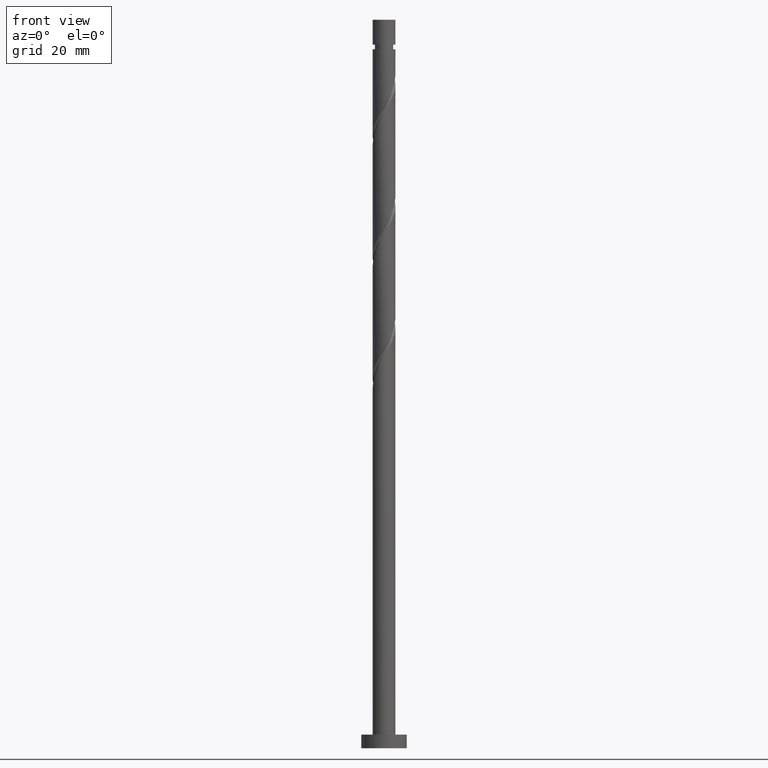
[diagram: clean part render]
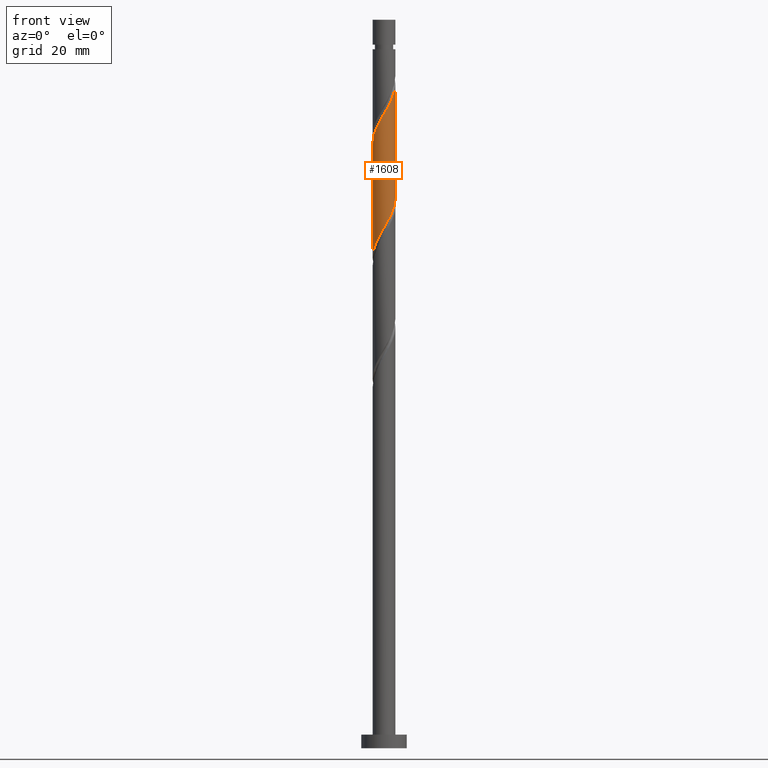
[diagram: same view with one face highlighted and labeled with its STEP entity id]
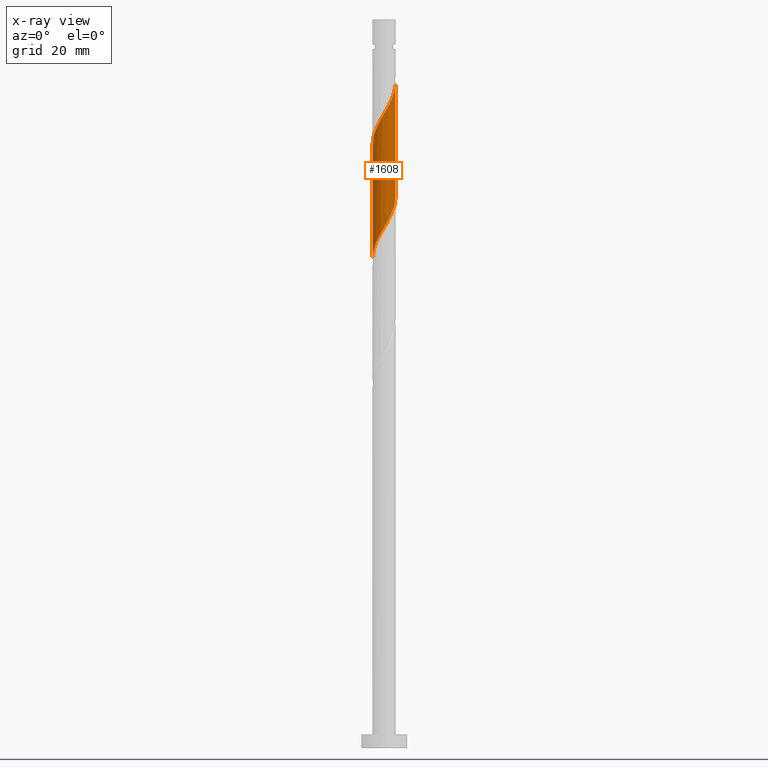
[diagram: x-ray of the same camera — body ghosted, the highlighted face saturated]
A machine part, front view. The second image highlights one B-rep face of the part: STEP entity #1608.
The next image is the same camera in x-ray: the body ghosted, the highlighted face saturated — about 0% of this face is hidden behind the body in this view.
In plain terms, the highlighted cylindrical surface (edge-blend (fillet) strip) has radius 2.5 mm, axis along (-0, -0, -1).
Its self-contained STEP definition (entity closure, byte-faithful):
#21 = DIRECTION ( 'NONE',  ( -0.000000000000000000, -0.000000000000000000, -1.000000000000000000 ) ) ;
#26 = LINE ( 'NONE', #1440, #511 ) ;
#33 = CARTESIAN_POINT ( 'NONE',  ( -0.4974937185533109263, -2.449999999999999289, 113.5153145117290734 ) ) ;
#40 =( BOUNDED_CURVE ( )  B_SPLINE_CURVE ( 2, ( #284, #1553, #911, #796, #904, #1422, #754, #232, #1047, #1563, #924, #793, #537, #661, #33, #1315, #409, #281, #1439, #1190, #822, #1199, #1463, #1207, #1340 ),
 .UNSPECIFIED., .F., .T. ) 
 B_SPLINE_CURVE_WITH_KNOTS ( ( 3, 2, 2, 2, 2, 2, 2, 2, 2, 2, 2, 2, 3 ),
 ( 0.5545252162417514397, 0.5568181818181817677, 0.5681818181818182323, 0.5795454545454545858, 0.5909090909090909394, 0.6022727272727272929, 0.6136363636363636465, 0.6250000000000000000, 0.6363636363636363535, 0.6477272727272727071, 0.6590909090909090606, 0.6704545454545454142, 0.6795252162417515507 ),
 .UNSPECIFIED. ) 
 CURVE ( )  GEOMETRIC_REPRESENTATION_ITEM ( )  RATIONAL_B_SPLINE_CURVE ( ( 0.9061101570135601246, 0.9072237824201422329, 0.9090909090909196077, 0.8998376744372220681, 0.9090909090909196077, 0.8998376744372220681, 0.9090909090909196077, 0.8998376744372220681, 0.9090909090909196077, 0.8998376744372220681, 0.9090909090909196077, 0.8998376744372220681, 0.9090909090909196077, 0.8998376744372220681, 0.9090909090909196077, 0.8998376744372220681, 0.9090909090909196077, 0.8998376744372220681, 0.9090909090909196077, 0.8998376744372220681, 0.9090909090909196077, 0.8998376744372220681, 0.9090909090909196077, 0.9017048011079993319, 0.9061101570135603467 ) ) 
 REPRESENTATION_ITEM ( '' )  );
#61 = CARTESIAN_POINT ( 'NONE',  ( -2.500000000000004441, -1.936908281102772785E-15, 132.6658600324281849 ) ) ;
#65 = CARTESIAN_POINT ( 'NONE',  ( 2.500000000000003997, 1.839688946530046523E-15, 145.9991933657615846 ) ) ;
#72 = CARTESIAN_POINT ( 'NONE',  ( -2.021932029057393443, -1.470302985738610513, 135.3334963299109575 ) ) ;
#75 = CARTESIAN_POINT ( 'NONE',  ( 1.743088351060510188, -1.792105744758709873, 142.6062236026381527 ) ) ;
#84 = CARTESIAN_POINT ( 'NONE',  ( 0.1452368982656257745, -2.521528798126813964, 139.5759205723351215 ) ) ;
#143 = AXIS2_PLACEMENT_3D ( 'NONE', #679, #1208, #1076 ) ;
#162 = EDGE_CURVE ( 'NONE', #1569, #391, #1396, .T. ) ;
#203 = CARTESIAN_POINT ( 'NONE',  ( 2.177375558832925329, -1.228428132125369387, 143.8183448147593992 ) ) ;
#211 =( BOUNDED_CURVE ( )  B_SPLINE_CURVE ( 2, ( #61, #1217, #1088, #1601, #1377, #368, #72, #977, #1493, #727, #458, #1391, #1116, #84, #1235, #1630, #466, #329, #75, #339, #203, #213, #710, #1219, #65 ),
 .UNSPECIFIED., .F., .T. ) 
 B_SPLINE_CURVE_WITH_KNOTS ( ( 3, 2, 2, 2, 2, 2, 2, 2, 2, 2, 2, 2, 3 ),
 ( 0.5545252162417514397, 0.5568181818181818787, 0.5681818181818181213, 0.5795454545454545858, 0.5909090909090908283, 0.6022727272727272929, 0.6136363636363636465, 0.6250000000000000000, 0.6363636363636363535, 0.6477272727272727071, 0.6590909090909091717, 0.6704545454545454142, 0.6795252162417515507 ),
 .UNSPECIFIED. ) 
 CURVE ( )  GEOMETRIC_REPRESENTATION_ITEM ( )  RATIONAL_B_SPLINE_CURVE ( ( 0.9061101570135666750, 0.9072237824201487832, 0.9090909090909261581, 0.8998376744372282854, 0.9090909090909261581, 0.8998376744372282854, 0.9090909090909261581, 0.8998376744372282854, 0.9090909090909261581, 0.8998376744372282854, 0.9090909090909261581, 0.8998376744372282854, 0.9090909090909261581, 0.8998376744372282854, 0.9090909090909261581, 0.8998376744372282854, 0.9090909090909261581, 0.8998376744372282854, 0.9090909090909261581, 0.8998376744372282854, 0.9090909090909261581, 0.8998376744372282854, 0.9090909090909261581, 0.9017048011080057712, 0.9061101570135665639 ) ) 
 REPRESENTATION_ITEM ( '' )  );
#213 = CARTESIAN_POINT ( 'NONE',  ( 2.353996859965343802, -0.9153687888900189362, 144.4244054208200225 ) ) ;
#218 = EDGE_CURVE ( 'NONE', #391, #1176, #40, .T. ) ;
#232 = CARTESIAN_POINT ( 'NONE',  ( 1.810534374112177547, -1.761012923450274714, 117.7577387541533085 ) ) ;
#265 = ORIENTED_EDGE ( 'NONE', *, *, #218, .F. ) ;
#266 = EDGE_CURVE ( 'NONE', #1031, #1569, #211, .T. ) ;
#281 = CARTESIAN_POINT ( 'NONE',  ( -1.485422444420509747, -2.042724014156697798, 111.6971326935472746 ) ) ;
#284 = CARTESIAN_POINT ( 'NONE',  ( 2.500000000000000000, -3.155889168437744836E-15, 121.0314356576966190 ) ) ;
#329 = CARTESIAN_POINT ( 'NONE',  ( 1.485422444420512189, -2.042724014156701795, 142.0001629965776431 ) ) ;
#339 = CARTESIAN_POINT ( 'NONE',  ( 2.000754257700509076, -1.541487475360719284, 143.2122842086988044 ) ) ;
#368 = CARTESIAN_POINT ( 'NONE',  ( -2.233329684002606896, -1.179593048026944091, 134.7274357238503057 ) ) ;
#391 = VERTEX_POINT ( 'NONE', #693 ) ;
#409 = CARTESIAN_POINT ( 'NONE',  ( -1.167586491630751899, -2.210597608014944093, 112.3031932996078552 ) ) ;
#458 = CARTESIAN_POINT ( 'NONE',  ( -0.9060516544719224852, -2.330036566114084273, 137.7577387541533653 ) ) ;
#466 = CARTESIAN_POINT ( 'NONE',  ( 1.167586491630753454, -2.210597608014948090, 141.3941023905170198 ) ) ;
#511 = VECTOR ( 'NONE', #1191, 1000.000000000000000 ) ;
#527 = CARTESIAN_POINT ( 'NONE',  ( -2.500000000000003997, -1.936908281102772785E-15, 132.6658600324281849 ) ) ;
#537 = CARTESIAN_POINT ( 'NONE',  ( 0.2129030368922521788, -2.490917962696093113, 114.7274357238503200 ) ) ;
#640 = ORIENTED_EDGE ( 'NONE', *, *, #1263, .T. ) ;
#661 = CARTESIAN_POINT ( 'NONE',  ( -0.1452368982656266350, -2.521528798126810411, 114.1213751177896967 ) ) ;
#679 = CARTESIAN_POINT ( 'NONE',  ( 0.000000000000000000, 0.000000000000000000, 160.0000000000000000 ) ) ;
#693 = CARTESIAN_POINT ( 'NONE',  ( 2.500000000000000444, -3.155889168437744836E-15, 121.0314356576966190 ) ) ;
#710 = CARTESIAN_POINT ( 'NONE',  ( 2.435264748179753802, -0.5652305779706356947, 145.0304660268806458 ) ) ;
#727 = CARTESIAN_POINT ( 'NONE',  ( -1.241060336893711646, -2.199766004962788291, 137.1516781480927705 ) ) ;
#754 = CARTESIAN_POINT ( 'NONE',  ( 2.021932029057389890, -1.470302985738608958, 118.3637993602139318 ) ) ;
#793 = CARTESIAN_POINT ( 'NONE',  ( 0.5710429720501321027, -2.460307127265375371, 115.3334963299109148 ) ) ;
#796 = CARTESIAN_POINT ( 'NONE',  ( 2.475193905018187035, -0.5026095591624447634, 120.1819811783957590 ) ) ;
#822 = CARTESIAN_POINT ( 'NONE',  ( -2.177375558832922664, -1.228428132125366723, 109.8789508753654474 ) ) ;
#902 = CARTESIAN_POINT ( 'NONE',  ( -2.500000000000000000, 9.587322070941203532E-15, 107.6981023243632904 ) ) ;
#904 = CARTESIAN_POINT ( 'NONE',  ( 2.354261794510395411, -0.8411013035946938166, 119.5759205723351499 ) ) ;
#911 = CARTESIAN_POINT ( 'NONE',  ( 2.495863270706175197, -0.1437585960555969600, 120.7880417844563397 ) ) ;
#924 = CARTESIAN_POINT ( 'NONE',  ( 0.9060516544719198206, -2.330036566114079832, 115.9395569359715239 ) ) ;
#939 = ORIENTED_EDGE ( 'NONE', *, *, #162, .F. ) ;
#964 = CARTESIAN_POINT ( 'NONE',  ( 2.500000000000003997, 1.839688946530046523E-15, 145.9991933657615846 ) ) ;
#977 = CARTESIAN_POINT ( 'NONE',  ( -1.810534374112179989, -1.761012923450278045, 135.9395569359715523 ) ) ;
#1031 = VERTEX_POINT ( 'NONE', #527 ) ;
#1047 = CARTESIAN_POINT ( 'NONE',  ( 1.525797355502942043, -1.980389464206530725, 117.1516781480927278 ) ) ;
#1063 = EDGE_LOOP ( 'NONE', ( #939, #1412, #640, #265 ) ) ;
#1076 = DIRECTION ( 'NONE',  ( -1.000000000000000000, 0.000000000000000000, 0.000000000000000000 ) ) ;
#1088 = CARTESIAN_POINT ( 'NONE',  ( -2.495863270706177861, -0.1437585960555961828, 132.9092539056684927 ) ) ;
#1116 = CARTESIAN_POINT ( 'NONE',  ( -0.2129030368922535665, -2.490917962696097554, 138.9698599662745266 ) ) ;
#1176 = VERTEX_POINT ( 'NONE', #902 ) ;
#1190 = CARTESIAN_POINT ( 'NONE',  ( -2.000754257700505967, -1.541487475360715065, 110.4850114814260422 ) ) ;
#1191 = DIRECTION ( 'NONE',  ( -0.000000000000000000, -0.000000000000000000, -1.000000000000000000 ) ) ;
#1199 = CARTESIAN_POINT ( 'NONE',  ( -2.353996859965338917, -0.9153687888900170488, 109.2728902693048525 ) ) ;
#1207 = CARTESIAN_POINT ( 'NONE',  ( -2.500000000000001776, -0.2863223184627987083, 108.1840622773345899 ) ) ;
#1208 = DIRECTION ( 'NONE',  ( -0.000000000000000000, -0.000000000000000000, -1.000000000000000000 ) ) ;
#1217 = CARTESIAN_POINT ( 'NONE',  ( -2.500000000000003109, -0.07193881630955789586, 132.7879580371464101 ) ) ;
#1219 = CARTESIAN_POINT ( 'NONE',  ( 2.500000000000004885, -0.2863223184628023166, 145.5132334127902425 ) ) ;
#1235 = CARTESIAN_POINT ( 'NONE',  ( 0.4974937185533107042, -2.450000000000004174, 140.1819811783957448 ) ) ;
#1263 = EDGE_CURVE ( 'NONE', #1031, #1176, #26, .T. ) ;
#1268 = CARTESIAN_POINT ( 'NONE',  ( 2.500000000000000000, 3.061616997868383141E-16, 160.0000000000000000 ) ) ;
#1315 = CARTESIAN_POINT ( 'NONE',  ( -0.8497505388409954952, -2.378471201873189500, 112.9092539056684785 ) ) ;
#1340 = CARTESIAN_POINT ( 'NONE',  ( -2.500000000000000000, 9.587322070941203532E-15, 107.6981023243632904 ) ) ;
#1377 = CARTESIAN_POINT ( 'NONE',  ( -2.354261794510399408, -0.8411013035946942606, 134.1213751177897393 ) ) ;
#1391 = CARTESIAN_POINT ( 'NONE',  ( -0.5710429720501328799, -2.460307127265380256, 138.3637993602139886 ) ) ;
#1396 = LINE ( 'NONE', #1268, #1515 ) ;
#1412 = ORIENTED_EDGE ( 'NONE', *, *, #266, .F. ) ;
#1422 = CARTESIAN_POINT ( 'NONE',  ( 2.233329684002602900, -1.179593048026942315, 118.9698599662745266 ) ) ;
#1439 = CARTESIAN_POINT ( 'NONE',  ( -1.743088351060508412, -1.792105744758706987, 111.0910720874866655 ) ) ;
#1440 = CARTESIAN_POINT ( 'NONE',  ( -2.500000000000000000, 0.000000000000000000, 160.0000000000000000 ) ) ;
#1463 = CARTESIAN_POINT ( 'NONE',  ( -2.435264748179750693, -0.5652305779706341404, 108.6668296632442576 ) ) ;
#1470 = CYLINDRICAL_SURFACE ( 'NONE', #143, 2.500000000000000000 ) ;
#1493 = CARTESIAN_POINT ( 'NONE',  ( -1.525797355502945374, -1.980389464206532057, 136.5456175420320903 ) ) ;
#1515 = VECTOR ( 'NONE', #21, 1000.000000000000000 ) ;
#1553 = CARTESIAN_POINT ( 'NONE',  ( 2.500000000000000000, -0.07193881630956168449, 120.9093376529783939 ) ) ;
#1563 = CARTESIAN_POINT ( 'NONE',  ( 1.241060336893708538, -2.199766004962784738, 116.5456175420320903 ) ) ;
#1569 = VERTEX_POINT ( 'NONE', #964 ) ;
#1601 = CARTESIAN_POINT ( 'NONE',  ( -2.475193905018193252, -0.5026095591624447634, 133.5153145117291160 ) ) ;
#1608 = ADVANCED_FACE ( 'NONE', ( #1609 ), #1470, .T. ) ;
#1609 = FACE_OUTER_BOUND ( 'NONE', #1063, .T. ) ;
#1630 = CARTESIAN_POINT ( 'NONE',  ( 0.8497505388409959393, -2.378471201873194385, 140.7880417844563681 ) ) ;